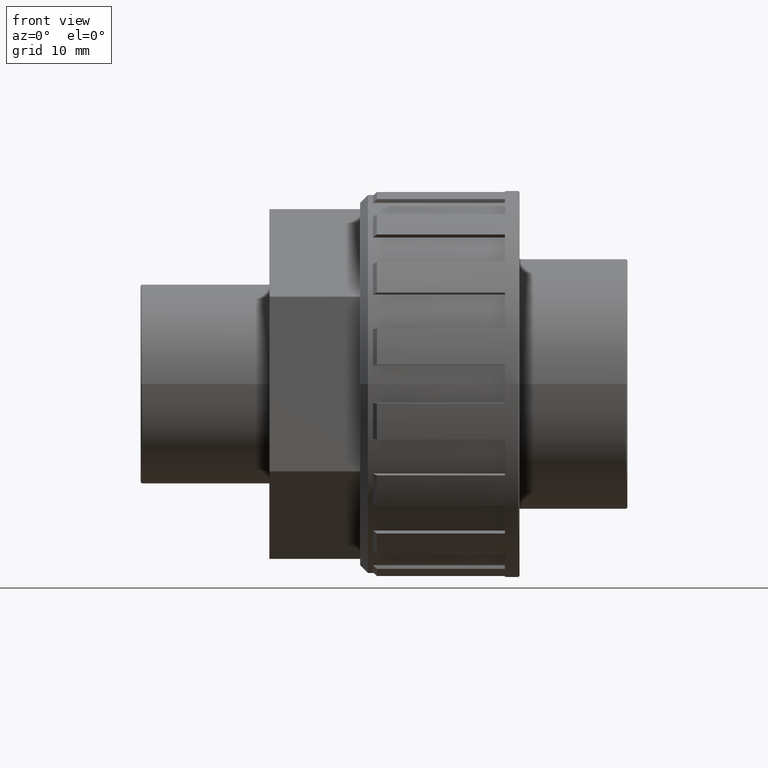
[diagram: clean part render]
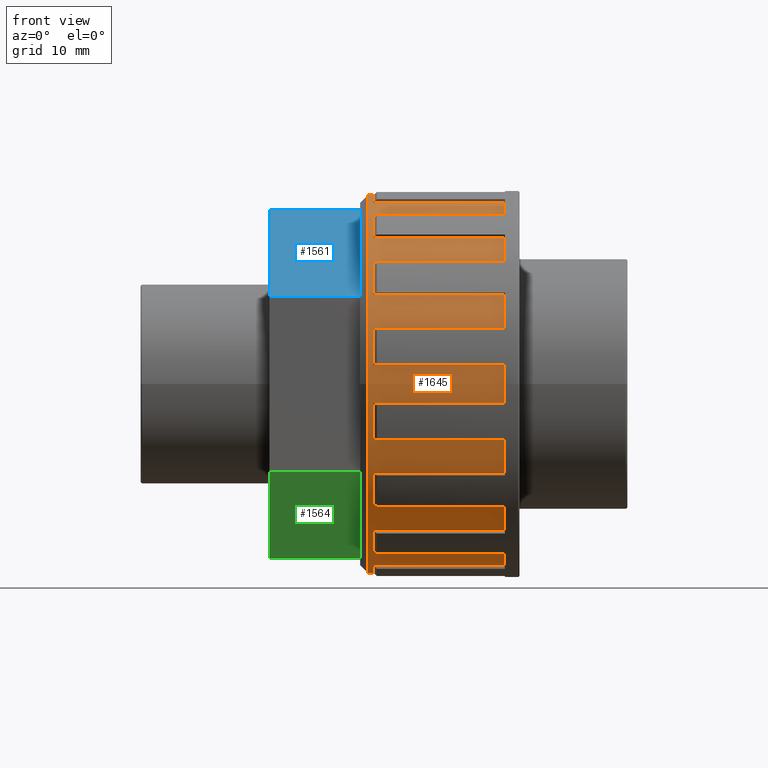
[diagram: same view with three faces highlighted in distinct colors, each labeled with its STEP entity id]
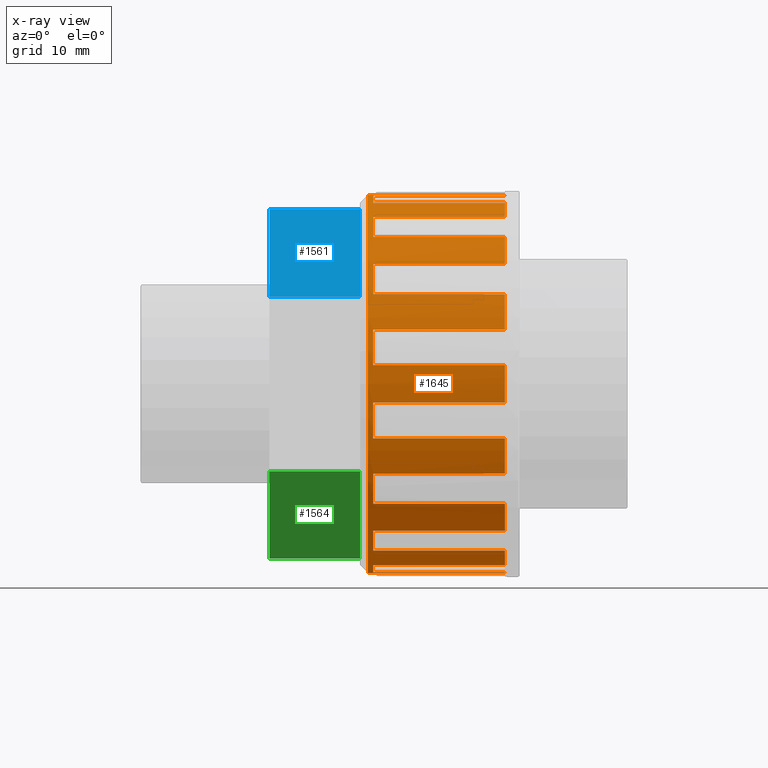
[diagram: x-ray of the same camera — body ghosted, the three highlighted faces saturated]
A machine part, front view with three faces highlighted in distinct colors.
The next image is the same camera in x-ray (body ghosted, the three faces saturated) — at least one of them is partly hidden behind the body in this view.
Their STEP definitions:

[orange] entity #1645 — the highlighted cylindrical surface (bore or boss wall) has radius 24.99 mm, axis along (-1, -0, 0).
#51=FACE_BOUND('',#342,.T.);
#64=CYLINDRICAL_SURFACE('',#1819,24.99);
#67=CIRCLE('',#1664,24.99);
#69=CIRCLE('',#1669,24.99);
#71=CIRCLE('',#1674,24.99);
#73=CIRCLE('',#1679,24.99);
#75=CIRCLE('',#1684,24.99);
#77=CIRCLE('',#1689,24.99);
#79=CIRCLE('',#1694,24.99);
#81=CIRCLE('',#1699,24.99);
#83=CIRCLE('',#1704,24.99);
#85=CIRCLE('',#1709,24.99);
#87=CIRCLE('',#1714,24.99);
#89=CIRCLE('',#1719,24.99);
#91=CIRCLE('',#1724,24.99);
#93=CIRCLE('',#1729,24.99);
#95=CIRCLE('',#1734,24.99);
#115=CIRCLE('',#1756,24.99);
#116=CIRCLE('',#1758,24.99);
#117=CIRCLE('',#1760,24.99);
#118=CIRCLE('',#1762,24.99);
#119=CIRCLE('',#1764,24.99);
#120=CIRCLE('',#1766,24.99);
#121=CIRCLE('',#1768,24.99);
#122=CIRCLE('',#1770,24.99);
#123=CIRCLE('',#1772,24.99);
#124=CIRCLE('',#1774,24.99);
#125=CIRCLE('',#1776,24.99);
#126=CIRCLE('',#1778,24.99);
#127=CIRCLE('',#1780,24.99);
#128=CIRCLE('',#1782,24.99);
#129=CIRCLE('',#1784,24.99);
#130=CIRCLE('',#1786,24.99);
#144=CIRCLE('',#1815,24.99);
#145=CIRCLE('',#1817,24.99);
#235=FACE_OUTER_BOUND('',#341,.T.);
#341=EDGE_LOOP('',(#1410,#1411,#1412,#1413,#1414,#1415,#1416,#1417,#1418,
#1419,#1420,#1421,#1422,#1423,#1424,#1425,#1426,#1427,#1428,#1429,#1430,
#1431,#1432,#1433,#1434,#1435,#1436,#1437,#1438,#1439,#1440,#1441,#1442,
#1443,#1444,#1445,#1446,#1447,#1448,#1449,#1450,#1451,#1452,#1453,#1454,
#1455,#1456,#1457,#1458,#1459,#1460,#1461,#1462,#1463,#1464,#1465,#1466,
#1467,#1468,#1469,#1470,#1471,#1472,#1473));
#342=EDGE_LOOP('',(#1474));
#378=LINE('',#2376,#524);
#380=LINE('',#2382,#526);
#386=LINE('',#2397,#532);
#388=LINE('',#2403,#534);
#394=LINE('',#2418,#540);
#396=LINE('',#2424,#542);
#402=LINE('',#2439,#548);
#404=LINE('',#2445,#550);
#410=LINE('',#2460,#556);
#412=LINE('',#2466,#558);
#418=LINE('',#2481,#564);
#420=LINE('',#2487,#566);
#426=LINE('',#2502,#572);
#428=LINE('',#2508,#574);
#434=LINE('',#2523,#580);
#436=LINE('',#2529,#582);
#442=LINE('',#2544,#588);
#444=LINE('',#2550,#590);
#450=LINE('',#2565,#596);
#452=LINE('',#2571,#598);
#458=LINE('',#2586,#604);
#460=LINE('',#2592,#606);
#466=LINE('',#2607,#612);
#468=LINE('',#2613,#614);
#474=LINE('',#2628,#620);
#476=LINE('',#2634,#622);
#482=LINE('',#2649,#628);
#484=LINE('',#2655,#630);
#490=LINE('',#2670,#636);
#492=LINE('',#2676,#638);
#500=LINE('',#2748,#646);
#501=LINE('',#2789,#647);
#524=VECTOR('',#1868,17.415);
#526=VECTOR('',#1872,17.415);
#532=VECTOR('',#1886,17.415);
#534=VECTOR('',#1890,17.415);
#540=VECTOR('',#1904,17.415);
#542=VECTOR('',#1908,17.415);
#548=VECTOR('',#1922,17.415);
#550=VECTOR('',#1926,17.415);
#556=VECTOR('',#1940,17.415);
#558=VECTOR('',#1944,17.415);
#564=VECTOR('',#1958,17.415);
#566=VECTOR('',#1962,17.415);
#572=VECTOR('',#1976,17.415);
#574=VECTOR('',#1980,17.415);
#580=VECTOR('',#1994,17.415);
#582=VECTOR('',#1998,17.415);
#588=VECTOR('',#2012,17.415);
#590=VECTOR('',#2016,17.415);
#596=VECTOR('',#2030,17.415);
#598=VECTOR('',#2034,17.415);
#604=VECTOR('',#2048,17.415);
#606=VECTOR('',#2052,17.415);
#612=VECTOR('',#2066,17.415);
#614=VECTOR('',#2070,17.415);
#620=VECTOR('',#2084,17.415);
#622=VECTOR('',#2088,17.415);
#628=VECTOR('',#2102,17.415);
#630=VECTOR('',#2106,17.415);
#636=VECTOR('',#2120,17.415);
#638=VECTOR('',#2124,17.415);
#646=VECTOR('',#2242,17.415);
#647=VECTOR('',#2295,17.415);
#662=VERTEX_POINT('',#2370);
#664=VERTEX_POINT('',#2374);
#665=VERTEX_POINT('',#2378);
#667=VERTEX_POINT('',#2381);
#670=VERTEX_POINT('',#2391);
#672=VERTEX_POINT('',#2395);
#673=VERTEX_POINT('',#2399);
#675=VERTEX_POINT('',#2402);
#678=VERTEX_POINT('',#2412);
#680=VERTEX_POINT('',#2416);
#681=VERTEX_POINT('',#2420);
#683=VERTEX_POINT('',#2423);
#686=VERTEX_POINT('',#2433);
#688=VERTEX_POINT('',#2437);
#689=VERTEX_POINT('',#2441);
#691=VERTEX_POINT('',#2444);
#694=VERTEX_POINT('',#2454);
#696=VERTEX_POINT('',#2458);
#697=VERTEX_POINT('',#2462);
#699=VERTEX_POINT('',#2465);
#702=VERTEX_POINT('',#2475);
#704=VERTEX_POINT('',#2479);
#705=VERTEX_POINT('',#2483);
#707=VERTEX_POINT('',#2486);
#710=VERTEX_POINT('',#2496);
#712=VERTEX_POINT('',#2500);
#713=VERTEX_POINT('',#2504);
#715=VERTEX_POINT('',#2507);
#718=VERTEX_POINT('',#2517);
#720=VERTEX_POINT('',#2521);
#721=VERTEX_POINT('',#2525);
#723=VERTEX_POINT('',#2528);
#726=VERTEX_POINT('',#2538);
#728=VERTEX_POINT('',#2542);
#729=VERTEX_POINT('',#2546);
#731=VERTEX_POINT('',#2549);
#734=VERTEX_POINT('',#2559);
#736=VERTEX_POINT('',#2563);
#737=VERTEX_POINT('',#2567);
#739=VERTEX_POINT('',#2570);
#742=VERTEX_POINT('',#2580);
#744=VERTEX_POINT('',#2584);
#745=VERTEX_POINT('',#2588);
#747=VERTEX_POINT('',#2591);
#750=VERTEX_POINT('',#2601);
#752=VERTEX_POINT('',#2605);
#753=VERTEX_POINT('',#2609);
#755=VERTEX_POINT('',#2612);
#758=VERTEX_POINT('',#2622);
#760=VERTEX_POINT('',#2626);
#761=VERTEX_POINT('',#2630);
#763=VERTEX_POINT('',#2633);
#766=VERTEX_POINT('',#2643);
#768=VERTEX_POINT('',#2647);
#769=VERTEX_POINT('',#2651);
#771=VERTEX_POINT('',#2654);
#774=VERTEX_POINT('',#2664);
#776=VERTEX_POINT('',#2668);
#777=VERTEX_POINT('',#2672);
#779=VERTEX_POINT('',#2675);
#786=VERTEX_POINT('',#2710);
#787=VERTEX_POINT('',#2742);
#788=VERTEX_POINT('',#2746);
#802=VERTEX_POINT('',#2788);
#803=VERTEX_POINT('',#2794);
#830=EDGE_CURVE('',#662,#664,#378,.T.);
#832=EDGE_CURVE('',#665,#667,#380,.T.);
#835=EDGE_CURVE('',#664,#667,#67,.T.);
#840=EDGE_CURVE('',#670,#672,#386,.T.);
#842=EDGE_CURVE('',#673,#675,#388,.T.);
#845=EDGE_CURVE('',#672,#675,#69,.T.);
#850=EDGE_CURVE('',#678,#680,#394,.T.);
#852=EDGE_CURVE('',#681,#683,#396,.T.);
#855=EDGE_CURVE('',#680,#683,#71,.T.);
#860=EDGE_CURVE('',#686,#688,#402,.T.);
#862=EDGE_CURVE('',#689,#691,#404,.T.);
#865=EDGE_CURVE('',#688,#691,#73,.T.);
#870=EDGE_CURVE('',#694,#696,#410,.T.);
#872=EDGE_CURVE('',#697,#699,#412,.T.);
#875=EDGE_CURVE('',#696,#699,#75,.T.);
#880=EDGE_CURVE('',#702,#704,#418,.T.);
#882=EDGE_CURVE('',#705,#707,#420,.T.);
#885=EDGE_CURVE('',#704,#707,#77,.T.);
#890=EDGE_CURVE('',#710,#712,#426,.T.);
#892=EDGE_CURVE('',#713,#715,#428,.T.);
#895=EDGE_CURVE('',#712,#715,#79,.T.);
#900=EDGE_CURVE('',#718,#720,#434,.T.);
#902=EDGE_CURVE('',#721,#723,#436,.T.);
#905=EDGE_CURVE('',#720,#723,#81,.T.);
#910=EDGE_CURVE('',#726,#728,#442,.T.);
#912=EDGE_CURVE('',#729,#731,#444,.T.);
#915=EDGE_CURVE('',#728,#731,#83,.T.);
#920=EDGE_CURVE('',#734,#736,#450,.T.);
#922=EDGE_CURVE('',#737,#739,#452,.T.);
#925=EDGE_CURVE('',#736,#739,#85,.T.);
#930=EDGE_CURVE('',#742,#744,#458,.T.);
#932=EDGE_CURVE('',#745,#747,#460,.T.);
#935=EDGE_CURVE('',#744,#747,#87,.T.);
#940=EDGE_CURVE('',#750,#752,#466,.T.);
#942=EDGE_CURVE('',#753,#755,#468,.T.);
#945=EDGE_CURVE('',#752,#755,#89,.T.);
#950=EDGE_CURVE('',#758,#760,#474,.T.);
#952=EDGE_CURVE('',#761,#763,#476,.T.);
#955=EDGE_CURVE('',#760,#763,#91,.T.);
#960=EDGE_CURVE('',#766,#768,#482,.T.);
#962=EDGE_CURVE('',#769,#771,#484,.T.);
#965=EDGE_CURVE('',#768,#771,#93,.T.);
#970=EDGE_CURVE('',#774,#776,#490,.T.);
#972=EDGE_CURVE('',#777,#779,#492,.T.);
#975=EDGE_CURVE('',#776,#779,#95,.T.);
#997=EDGE_CURVE('',#786,#774,#115,.T.);
#999=EDGE_CURVE('',#777,#766,#116,.T.);
#1000=EDGE_CURVE('',#769,#758,#117,.T.);
#1001=EDGE_CURVE('',#761,#750,#118,.T.);
#1002=EDGE_CURVE('',#753,#742,#119,.T.);
#1003=EDGE_CURVE('',#745,#734,#120,.T.);
#1004=EDGE_CURVE('',#737,#726,#121,.T.);
#1005=EDGE_CURVE('',#729,#718,#122,.T.);
#1006=EDGE_CURVE('',#721,#710,#123,.T.);
#1007=EDGE_CURVE('',#713,#702,#124,.T.);
#1008=EDGE_CURVE('',#705,#694,#125,.T.);
#1009=EDGE_CURVE('',#697,#686,#126,.T.);
#1010=EDGE_CURVE('',#689,#678,#127,.T.);
#1011=EDGE_CURVE('',#681,#670,#128,.T.);
#1012=EDGE_CURVE('',#673,#662,#129,.T.);
#1014=EDGE_CURVE('',#665,#787,#130,.T.);
#1016=EDGE_CURVE('',#787,#788,#500,.T.);
#1030=EDGE_CURVE('',#786,#802,#501,.T.);
#1032=EDGE_CURVE('',#788,#802,#144,.T.);
#1033=EDGE_CURVE('',#803,#803,#145,.T.);
#1410=ORIENTED_EDGE('',*,*,#997,.T.);
#1411=ORIENTED_EDGE('',*,*,#970,.T.);
#1412=ORIENTED_EDGE('',*,*,#975,.T.);
#1413=ORIENTED_EDGE('',*,*,#972,.F.);
#1414=ORIENTED_EDGE('',*,*,#999,.T.);
#1415=ORIENTED_EDGE('',*,*,#960,.T.);
#1416=ORIENTED_EDGE('',*,*,#965,.T.);
#1417=ORIENTED_EDGE('',*,*,#962,.F.);
#1418=ORIENTED_EDGE('',*,*,#1000,.T.);
#1419=ORIENTED_EDGE('',*,*,#950,.T.);
#1420=ORIENTED_EDGE('',*,*,#955,.T.);
#1421=ORIENTED_EDGE('',*,*,#952,.F.);
#1422=ORIENTED_EDGE('',*,*,#1001,.T.);
#1423=ORIENTED_EDGE('',*,*,#940,.T.);
#1424=ORIENTED_EDGE('',*,*,#945,.T.);
#1425=ORIENTED_EDGE('',*,*,#942,.F.);
#1426=ORIENTED_EDGE('',*,*,#1002,.T.);
#1427=ORIENTED_EDGE('',*,*,#930,.T.);
#1428=ORIENTED_EDGE('',*,*,#935,.T.);
#1429=ORIENTED_EDGE('',*,*,#932,.F.);
#1430=ORIENTED_EDGE('',*,*,#1003,.T.);
#1431=ORIENTED_EDGE('',*,*,#920,.T.);
#1432=ORIENTED_EDGE('',*,*,#925,.T.);
#1433=ORIENTED_EDGE('',*,*,#922,.F.);
#1434=ORIENTED_EDGE('',*,*,#1004,.T.);
#1435=ORIENTED_EDGE('',*,*,#910,.T.);
#1436=ORIENTED_EDGE('',*,*,#915,.T.);
#1437=ORIENTED_EDGE('',*,*,#912,.F.);
#1438=ORIENTED_EDGE('',*,*,#1005,.T.);
#1439=ORIENTED_EDGE('',*,*,#900,.T.);
#1440=ORIENTED_EDGE('',*,*,#905,.T.);
#1441=ORIENTED_EDGE('',*,*,#902,.F.);
#1442=ORIENTED_EDGE('',*,*,#1006,.T.);
#1443=ORIENTED_EDGE('',*,*,#890,.T.);
#1444=ORIENTED_EDGE('',*,*,#895,.T.);
#1445=ORIENTED_EDGE('',*,*,#892,.F.);
#1446=ORIENTED_EDGE('',*,*,#1007,.T.);
#1447=ORIENTED_EDGE('',*,*,#880,.T.);
#1448=ORIENTED_EDGE('',*,*,#885,.T.);
#1449=ORIENTED_EDGE('',*,*,#882,.F.);
#1450=ORIENTED_EDGE('',*,*,#1008,.T.);
#1451=ORIENTED_EDGE('',*,*,#870,.T.);
#1452=ORIENTED_EDGE('',*,*,#875,.T.);
#1453=ORIENTED_EDGE('',*,*,#872,.F.);
#1454=ORIENTED_EDGE('',*,*,#1009,.T.);
#1455=ORIENTED_EDGE('',*,*,#860,.T.);
#1456=ORIENTED_EDGE('',*,*,#865,.T.);
#1457=ORIENTED_EDGE('',*,*,#862,.F.);
#1458=ORIENTED_EDGE('',*,*,#1010,.T.);
#1459=ORIENTED_EDGE('',*,*,#850,.T.);
#1460=ORIENTED_EDGE('',*,*,#855,.T.);
#1461=ORIENTED_EDGE('',*,*,#852,.F.);
#1462=ORIENTED_EDGE('',*,*,#1011,.T.);
#1463=ORIENTED_EDGE('',*,*,#840,.T.);
#1464=ORIENTED_EDGE('',*,*,#845,.T.);
#1465=ORIENTED_EDGE('',*,*,#842,.F.);
#1466=ORIENTED_EDGE('',*,*,#1012,.T.);
#1467=ORIENTED_EDGE('',*,*,#830,.T.);
#1468=ORIENTED_EDGE('',*,*,#835,.T.);
#1469=ORIENTED_EDGE('',*,*,#832,.F.);
#1470=ORIENTED_EDGE('',*,*,#1014,.T.);
#1471=ORIENTED_EDGE('',*,*,#1016,.T.);
#1472=ORIENTED_EDGE('',*,*,#1032,.T.);
#1473=ORIENTED_EDGE('',*,*,#1030,.F.);
#1474=ORIENTED_EDGE('',*,*,#1033,.F.);
#1645=ADVANCED_FACE('',(#235,#51),#64,.T.);
#1664=AXIS2_PLACEMENT_3D('',#2387,#1877,#1878);
#1669=AXIS2_PLACEMENT_3D('',#2408,#1895,#1896);
#1674=AXIS2_PLACEMENT_3D('',#2429,#1913,#1914);
#1679=AXIS2_PLACEMENT_3D('',#2450,#1931,#1932);
#1684=AXIS2_PLACEMENT_3D('',#2471,#1949,#1950);
#1689=AXIS2_PLACEMENT_3D('',#2492,#1967,#1968);
#1694=AXIS2_PLACEMENT_3D('',#2513,#1985,#1986);
#1699=AXIS2_PLACEMENT_3D('',#2534,#2003,#2004);
#1704=AXIS2_PLACEMENT_3D('',#2555,#2021,#2022);
#1709=AXIS2_PLACEMENT_3D('',#2576,#2039,#2040);
#1714=AXIS2_PLACEMENT_3D('',#2597,#2057,#2058);
#1719=AXIS2_PLACEMENT_3D('',#2618,#2075,#2076);
#1724=AXIS2_PLACEMENT_3D('',#2639,#2093,#2094);
#1729=AXIS2_PLACEMENT_3D('',#2660,#2111,#2112);
#1734=AXIS2_PLACEMENT_3D('',#2681,#2129,#2130);
#1756=AXIS2_PLACEMENT_3D('',#2711,#2175,#2176);
#1758=AXIS2_PLACEMENT_3D('',#2714,#2180,#2181);
#1760=AXIS2_PLACEMENT_3D('',#2716,#2184,#2185);
#1762=AXIS2_PLACEMENT_3D('',#2718,#2188,#2189);
#1764=AXIS2_PLACEMENT_3D('',#2720,#2192,#2193);
#1766=AXIS2_PLACEMENT_3D('',#2722,#2196,#2197);
#1768=AXIS2_PLACEMENT_3D('',#2724,#2200,#2201);
#1770=AXIS2_PLACEMENT_3D('',#2726,#2204,#2205);
#1772=AXIS2_PLACEMENT_3D('',#2728,#2208,#2209);
#1774=AXIS2_PLACEMENT_3D('',#2730,#2212,#2213);
#1776=AXIS2_PLACEMENT_3D('',#2732,#2216,#2217);
#1778=AXIS2_PLACEMENT_3D('',#2734,#2220,#2221);
#1780=AXIS2_PLACEMENT_3D('',#2736,#2224,#2225);
#1782=AXIS2_PLACEMENT_3D('',#2738,#2228,#2229);
#1784=AXIS2_PLACEMENT_3D('',#2740,#2232,#2233);
#1786=AXIS2_PLACEMENT_3D('',#2744,#2237,#2238);
#1815=AXIS2_PLACEMENT_3D('',#2792,#2299,#2300);
#1817=AXIS2_PLACEMENT_3D('',#2795,#2303,#2304);
#1819=AXIS2_PLACEMENT_3D('',#2798,#2307,#2308);
#1868=DIRECTION('',(1.,5.09540067881273E-16,2.35097471951134E-18));
#1872=DIRECTION('',(1.,5.09540067881273E-16,2.35097471951134E-18));
#1877=DIRECTION('center_axis',(-1.,-4.90924831958475E-16,5.35970846648675E-18));
#1878=DIRECTION('ref_axis',(-1.92820524679539E-16,0.382683432365091,-0.923879532511287));
#1886=DIRECTION('',(1.,5.08208347678249E-16,4.34403484961599E-18));
#1890=DIRECTION('',(1.,5.08208347678249E-16,4.34403484961599E-18));
#1895=DIRECTION('center_axis',(-1.,-4.93960862923804E-16,9.90344990482916E-18));
#1896=DIRECTION('ref_axis',(-3.56285872399027E-16,0.707106781186548,-0.707106781186547));
#1904=DIRECTION('',(1.,5.06215287548144E-16,5.67575505264069E-18));
#1908=DIRECTION('',(1.,5.06215287548144E-16,5.67575505264069E-18));
#1913=DIRECTION('center_axis',(-1.,-4.98504604362146E-16,1.29394808701581E-17));
#1914=DIRECTION('ref_axis',(-4.65509925785238E-16,0.923879532511287,-0.382683432365089));
#1922=DIRECTION('',(1.,5.03864312828633E-16,6.14339299974831E-18));
#1926=DIRECTION('',(1.,5.03864312828633E-16,6.14339299974831E-18));
#1931=DIRECTION('center_axis',(-1.,-5.03864312828633E-16,1.40055931696919E-17));
#1932=DIRECTION('ref_axis',(-5.03864312828633E-16,1.,1.11066729154177E-15));
#1940=DIRECTION('',(1.,5.01513338109121E-16,5.67575505264062E-18));
#1944=DIRECTION('',(1.,5.01513338109121E-16,5.67575505264062E-18));
#1949=DIRECTION('center_axis',(-1.,-5.09224021295119E-16,1.29394808701582E-17));
#1950=DIRECTION('ref_axis',(-4.65509925785238E-16,0.923879532511287,0.382683432365091));
#1958=DIRECTION('',(1.,4.99520277979017E-16,4.34403484961596E-18));
#1962=DIRECTION('',(1.,4.99520277979017E-16,4.34403484961596E-18));
#1967=DIRECTION('center_axis',(-1.,-5.13767762733462E-16,9.90344990482911E-18));
#1968=DIRECTION('ref_axis',(-3.56285872399026E-16,0.707106781186547,0.707106781186548));
#1976=DIRECTION('',(1.,4.98188557775992E-16,2.35097471951138E-18));
#1980=DIRECTION('',(1.,4.98188557775992E-16,2.35097471951138E-18));
#1985=DIRECTION('center_axis',(-1.,-5.16803793698791E-16,5.3597084664867E-18));
#1986=DIRECTION('ref_axis',(-1.92820524679538E-16,0.382683432365089,0.923879532511287));
#1994=DIRECTION('',(1.,4.97720919828884E-16,6.08593862426367E-32));
#1998=DIRECTION('',(1.,4.97720919828884E-16,6.08593862426367E-32));
#2003=DIRECTION('center_axis',(-1.,-5.17869905998324E-16,-1.0862244886344E-31));
#2004=DIRECTION('ref_axis',(2.76211801547973E-31,-5.77546991601722E-16,
1.));
#2012=DIRECTION('',(1.,4.98188557775992E-16,-2.35097471951131E-18));
#2016=DIRECTION('',(1.,4.98188557775992E-16,-2.35097471951131E-18));
#2021=DIRECTION('center_axis',(-1.,-5.16803793698791E-16,-5.35970846648682E-18));
#2022=DIRECTION('ref_axis',(1.92820524679539E-16,-0.38268343236509,0.923879532511287));
#2030=DIRECTION('',(1.,4.99520277979017E-16,-4.34403484961602E-18));
#2034=DIRECTION('',(1.,4.99520277979017E-16,-4.34403484961602E-18));
#2039=DIRECTION('center_axis',(-1.,-5.13767762733462E-16,-9.903449904829E-18));
#2040=DIRECTION('ref_axis',(3.56285872399026E-16,-0.707106781186548,0.707106781186547));
#2048=DIRECTION('',(1.,5.01513338109121E-16,-5.6757550526406E-18));
#2052=DIRECTION('',(1.,5.01513338109121E-16,-5.6757550526406E-18));
#2057=DIRECTION('center_axis',(-1.,-5.09224021295119E-16,-1.29394808701582E-17));
#2058=DIRECTION('ref_axis',(4.65509925785238E-16,-0.923879532511287,0.38268343236509));
#2066=DIRECTION('',(1.,5.03864312828633E-16,-6.14339299974842E-18));
#2070=DIRECTION('',(1.,5.03864312828633E-16,-6.14339299974842E-18));
#2075=DIRECTION('center_axis',(-1.,-5.03864312828633E-16,-1.40055931696918E-17));
#2076=DIRECTION('ref_axis',(5.03864312828633E-16,-1.,-3.10986841631696E-16));
#2084=DIRECTION('',(1.,5.06215287548144E-16,-5.67575505264064E-18));
#2088=DIRECTION('',(1.,5.06215287548144E-16,-5.67575505264064E-18));
#2093=DIRECTION('center_axis',(-1.,-4.98504604362146E-16,-1.29394808701581E-17));
#2094=DIRECTION('ref_axis',(4.65509925785238E-16,-0.923879532511287,-0.38268343236509));
#2102=DIRECTION('',(1.,5.08208347678249E-16,-4.34403484961598E-18));
#2106=DIRECTION('',(1.,5.08208347678249E-16,-4.34403484961598E-18));
#2111=DIRECTION('center_axis',(-1.,-4.93960862923804E-16,-9.90344990482914E-18));
#2112=DIRECTION('ref_axis',(3.56285872399026E-16,-0.707106781186547,-0.707106781186548));
#2120=DIRECTION('',(1.,5.09540067881273E-16,-2.35097471951134E-18));
#2124=DIRECTION('',(1.,5.09540067881273E-16,-2.35097471951134E-18));
#2129=DIRECTION('center_axis',(-1.,-4.90924831958475E-16,-5.35970846648675E-18));
#2130=DIRECTION('ref_axis',(1.92820524679539E-16,-0.38268343236509,-0.923879532511287));
#2175=DIRECTION('center_axis',(-1.,-4.89858719658941E-16,0.));
#2176=DIRECTION('ref_axis',(0.,0.,1.));
#2180=DIRECTION('center_axis',(-1.,-4.89858719658941E-16,0.));
#2181=DIRECTION('ref_axis',(0.,0.,1.));
#2184=DIRECTION('center_axis',(-1.,-4.89858719658941E-16,0.));
#2185=DIRECTION('ref_axis',(0.,0.,1.));
#2188=DIRECTION('center_axis',(-1.,-4.89858719658941E-16,0.));
#2189=DIRECTION('ref_axis',(0.,0.,1.));
#2192=DIRECTION('center_axis',(-1.,-4.89858719658941E-16,0.));
#2193=DIRECTION('ref_axis',(0.,0.,1.));
#2196=DIRECTION('center_axis',(-1.,-4.89858719658941E-16,0.));
#2197=DIRECTION('ref_axis',(0.,0.,1.));
#2200=DIRECTION('center_axis',(-1.,-4.89858719658941E-16,0.));
#2201=DIRECTION('ref_axis',(0.,0.,1.));
#2204=DIRECTION('center_axis',(-1.,-4.89858719658941E-16,0.));
#2205=DIRECTION('ref_axis',(0.,0.,1.));
#2208=DIRECTION('center_axis',(-1.,-4.89858719658941E-16,0.));
#2209=DIRECTION('ref_axis',(0.,0.,1.));
#2212=DIRECTION('center_axis',(-1.,-4.89858719658941E-16,0.));
#2213=DIRECTION('ref_axis',(0.,0.,1.));
#2216=DIRECTION('center_axis',(-1.,-4.89858719658941E-16,0.));
#2217=DIRECTION('ref_axis',(0.,0.,1.));
#2220=DIRECTION('center_axis',(-1.,-4.89858719658941E-16,0.));
#2221=DIRECTION('ref_axis',(0.,0.,1.));
#2224=DIRECTION('center_axis',(-1.,-4.89858719658941E-16,0.));
#2225=DIRECTION('ref_axis',(0.,0.,1.));
#2228=DIRECTION('center_axis',(-1.,-4.89858719658941E-16,0.));
#2229=DIRECTION('ref_axis',(0.,0.,1.));
#2232=DIRECTION('center_axis',(-1.,-4.89858719658941E-16,0.));
#2233=DIRECTION('ref_axis',(0.,0.,1.));
#2237=DIRECTION('center_axis',(-1.,-4.89858719658941E-16,0.));
#2238=DIRECTION('ref_axis',(0.,0.,1.));
#2242=DIRECTION('',(1.,5.10007705828381E-16,0.));
#2295=DIRECTION('',(1.,5.10007705828381E-16,0.));
#2299=DIRECTION('center_axis',(-1.,-4.89858719658941E-16,0.));
#2300=DIRECTION('ref_axis',(0.,0.,-1.));
#2303=DIRECTION('center_axis',(-1.,-4.89858719658941E-16,0.));
#2304=DIRECTION('ref_axis',(-5.03864312828633E-16,1.,0.));
#2307=DIRECTION('center_axis',(-1.,-4.89858719658941E-16,0.));
#2308=DIRECTION('ref_axis',(5.03864312828633E-16,-1.,0.));
#2370=CARTESIAN_POINT('',(-1.45000000000002,22.0156948234538,11.8240974894724));
#2374=CARTESIAN_POINT('',(15.965,22.0156948234538,11.8240974894724));
#2376=CARTESIAN_POINT('',(-1.45000000000002,22.0156948234538,11.8240974894724));
#2378=CARTESIAN_POINT('',(-1.45000000000002,23.9283466184146,7.20654758598102));
#2381=CARTESIAN_POINT('',(15.965,23.9283466184146,7.20654758598102));
#2382=CARTESIAN_POINT('',(-1.45000000000002,23.9283466184146,7.20654758598102));
#2387=CARTESIAN_POINT('Origin',(15.965,1.4058889691037E-14,9.27974041535481E-17));
#2391=CARTESIAN_POINT('',(-1.45000000000001,15.8149636295129,19.3490833218833));
#2395=CARTESIAN_POINT('',(15.965,15.8149636295129,19.3490833218833));
#2397=CARTESIAN_POINT('',(-1.45000000000001,15.8149636295129,19.3490833218833));
#2399=CARTESIAN_POINT('',(-1.45000000000001,19.3490833218833,15.814963629513));
#2402=CARTESIAN_POINT('',(15.965,19.3490833218833,15.814963629513));
#2403=CARTESIAN_POINT('',(-1.45000000000001,19.3490833218833,15.814963629513));
#2408=CARTESIAN_POINT('Origin',(15.965,1.40063241841118E-14,1.71467244735283E-16));
#2412=CARTESIAN_POINT('',(-1.45000000000001,7.206547585981,23.9283466184146));
#2416=CARTESIAN_POINT('',(15.965,7.20654758598101,23.9283466184146));
#2418=CARTESIAN_POINT('',(-1.45000000000001,7.206547585981,23.9283466184146));
#2420=CARTESIAN_POINT('',(-1.45000000000001,11.8240974894724,22.0156948234539));
#2423=CARTESIAN_POINT('',(15.965,11.8240974894724,22.0156948234539));
#2424=CARTESIAN_POINT('',(-1.45000000000001,11.8240974894724,22.0156948234539));
#2429=CARTESIAN_POINT('Origin',(15.965,1.39276543435301E-14,2.24032751660519E-16));
#2433=CARTESIAN_POINT('',(-1.45,-2.49900000000002,24.8647360532944));
#2437=CARTESIAN_POINT('',(15.965,-2.49900000000001,24.8647360532944));
#2439=CARTESIAN_POINT('',(-1.45,-2.49900000000002,24.8647360532944));
#2441=CARTESIAN_POINT('',(-1.45000000000001,2.49899999999998,24.8647360532944));
#2444=CARTESIAN_POINT('',(15.965,2.49899999999999,24.8647360532944));
#2445=CARTESIAN_POINT('',(-1.45000000000001,2.49899999999998,24.8647360532944));
#2450=CARTESIAN_POINT('Origin',(15.965,1.38348569393765E-14,2.42491303007383E-16));
#2454=CARTESIAN_POINT('',(-1.45,-11.8240974894724,22.0156948234538));
#2458=CARTESIAN_POINT('',(15.965,-11.8240974894724,22.0156948234538));
#2460=CARTESIAN_POINT('',(-1.45,-11.8240974894724,22.0156948234538));
#2462=CARTESIAN_POINT('',(-1.45,-7.20654758598102,23.9283466184146));
#2465=CARTESIAN_POINT('',(15.965,-7.20654758598101,23.9283466184146));
#2466=CARTESIAN_POINT('',(-1.45,-7.20654758598102,23.9283466184146));
#2471=CARTESIAN_POINT('Origin',(15.965,1.3742059535223E-14,2.24032751660516E-16));
#2475=CARTESIAN_POINT('',(-1.45,-19.3490833218833,15.8149636295129));
#2479=CARTESIAN_POINT('',(15.965,-19.3490833218833,15.8149636295129));
#2481=CARTESIAN_POINT('',(-1.45,-19.3490833218833,15.8149636295129));
#2483=CARTESIAN_POINT('',(-1.45,-15.814963629513,19.3490833218833));
#2486=CARTESIAN_POINT('',(15.965,-15.8149636295129,19.3490833218833));
#2487=CARTESIAN_POINT('',(-1.45,-15.814963629513,19.3490833218833));
#2492=CARTESIAN_POINT('Origin',(15.965,1.36633896946412E-14,1.71467244735282E-16));
#2496=CARTESIAN_POINT('',(-1.44999999999999,-23.9283466184146,7.20654758598099));
#2500=CARTESIAN_POINT('',(15.965,-23.9283466184146,7.20654758598099));
#2502=CARTESIAN_POINT('',(-1.44999999999999,-23.9283466184146,7.20654758598099));
#2504=CARTESIAN_POINT('',(-1.44999999999999,-22.0156948234538,11.8240974894724));
#2507=CARTESIAN_POINT('',(15.965,-22.0156948234538,11.8240974894724));
#2508=CARTESIAN_POINT('',(-1.44999999999999,-22.0156948234538,11.8240974894724));
#2513=CARTESIAN_POINT('Origin',(15.965,1.3610824187716E-14,9.27974041535508E-17));
#2517=CARTESIAN_POINT('',(-1.44999999999999,-24.8647360532944,-2.49900000000002));
#2521=CARTESIAN_POINT('',(15.965,-24.8647360532944,-2.49900000000001));
#2523=CARTESIAN_POINT('',(-1.44999999999999,-24.8647360532944,-2.49900000000002));
#2525=CARTESIAN_POINT('',(-1.44999999999999,-24.8647360532944,2.49899999999999));
#2528=CARTESIAN_POINT('',(15.965,-24.8647360532944,2.49899999999999));
#2529=CARTESIAN_POINT('',(-1.44999999999999,-24.8647360532944,2.49899999999999));
#2534=CARTESIAN_POINT('Origin',(15.965,1.35923656363691E-14,2.46519032881566E-30));
#2538=CARTESIAN_POINT('',(-1.44999999999999,-22.0156948234538,-11.8240974894724));
#2542=CARTESIAN_POINT('',(15.965,-22.0156948234538,-11.8240974894724));
#2544=CARTESIAN_POINT('',(-1.44999999999999,-22.0156948234538,-11.8240974894724));
#2546=CARTESIAN_POINT('',(-1.44999999999999,-23.9283466184146,-7.20654758598102));
#2549=CARTESIAN_POINT('',(15.965,-23.9283466184146,-7.20654758598102));
#2550=CARTESIAN_POINT('',(-1.44999999999999,-23.9283466184146,-7.20654758598102));
#2555=CARTESIAN_POINT('Origin',(15.965,1.3610824187716E-14,-9.27974041535481E-17));
#2559=CARTESIAN_POINT('',(-1.45,-15.8149636295129,-19.3490833218833));
#2563=CARTESIAN_POINT('',(15.965,-15.8149636295129,-19.3490833218833));
#2565=CARTESIAN_POINT('',(-1.45,-15.8149636295129,-19.3490833218833));
#2567=CARTESIAN_POINT('',(-1.45,-19.3490833218833,-15.814963629513));
#2570=CARTESIAN_POINT('',(15.965,-19.3490833218833,-15.814963629513));
#2571=CARTESIAN_POINT('',(-1.45,-19.3490833218833,-15.814963629513));
#2576=CARTESIAN_POINT('Origin',(15.965,1.36633896946412E-14,-1.71467244735285E-16));
#2580=CARTESIAN_POINT('',(-1.45,-7.206547585981,-23.9283466184146));
#2584=CARTESIAN_POINT('',(15.965,-7.20654758598099,-23.9283466184146));
#2586=CARTESIAN_POINT('',(-1.45,-7.206547585981,-23.9283466184146));
#2588=CARTESIAN_POINT('',(-1.45,-11.8240974894724,-22.0156948234539));
#2591=CARTESIAN_POINT('',(15.965,-11.8240974894724,-22.0156948234539));
#2592=CARTESIAN_POINT('',(-1.45,-11.8240974894724,-22.0156948234539));
#2597=CARTESIAN_POINT('Origin',(15.965,1.3742059535223E-14,-2.24032751660516E-16));
#2601=CARTESIAN_POINT('',(-1.45000000000001,2.49900000000002,-24.8647360532944));
#2605=CARTESIAN_POINT('',(15.965,2.49900000000002,-24.8647360532944));
#2607=CARTESIAN_POINT('',(-1.45000000000001,2.49900000000002,-24.8647360532944));
#2609=CARTESIAN_POINT('',(-1.45,-2.49899999999999,-24.8647360532944));
#2612=CARTESIAN_POINT('',(15.965,-2.49899999999998,-24.8647360532944));
#2613=CARTESIAN_POINT('',(-1.45,-2.49899999999999,-24.8647360532944));
#2618=CARTESIAN_POINT('Origin',(15.965,1.38348569393765E-14,-2.42491303007387E-16));
#2622=CARTESIAN_POINT('',(-1.45000000000001,11.8240974894724,-22.0156948234538));
#2626=CARTESIAN_POINT('',(15.965,11.8240974894724,-22.0156948234538));
#2628=CARTESIAN_POINT('',(-1.45000000000001,11.8240974894724,-22.0156948234538));
#2630=CARTESIAN_POINT('',(-1.45000000000001,7.20654758598101,-23.9283466184146));
#2633=CARTESIAN_POINT('',(15.965,7.20654758598102,-23.9283466184146));
#2634=CARTESIAN_POINT('',(-1.45000000000001,7.20654758598101,-23.9283466184146));
#2639=CARTESIAN_POINT('Origin',(15.965,1.39276543435301E-14,-2.24032751660518E-16));
#2643=CARTESIAN_POINT('',(-1.45000000000002,19.3490833218833,-15.8149636295129));
#2647=CARTESIAN_POINT('',(15.965,19.3490833218833,-15.8149636295129));
#2649=CARTESIAN_POINT('',(-1.45000000000002,19.3490833218833,-15.8149636295129));
#2651=CARTESIAN_POINT('',(-1.45000000000001,15.814963629513,-19.3490833218833));
#2654=CARTESIAN_POINT('',(15.965,15.814963629513,-19.3490833218833));
#2655=CARTESIAN_POINT('',(-1.45000000000001,15.814963629513,-19.3490833218833));
#2660=CARTESIAN_POINT('Origin',(15.965,1.40063241841118E-14,-1.71467244735283E-16));
#2664=CARTESIAN_POINT('',(-1.45000000000002,23.9283466184146,-7.20654758598101));
#2668=CARTESIAN_POINT('',(15.965,23.9283466184146,-7.20654758598101));
#2670=CARTESIAN_POINT('',(-1.45000000000002,23.9283466184146,-7.20654758598101));
#2672=CARTESIAN_POINT('',(-1.45000000000002,22.0156948234539,-11.8240974894724));
#2675=CARTESIAN_POINT('',(15.965,22.0156948234539,-11.8240974894724));
#2676=CARTESIAN_POINT('',(-1.45000000000002,22.0156948234539,-11.8240974894724));
#2681=CARTESIAN_POINT('Origin',(15.965,1.4058889691037E-14,-9.27974041535486E-17));
#2710=CARTESIAN_POINT('',(-1.45000000000002,24.8647360532945,-2.499));
#2711=CARTESIAN_POINT('Origin',(-1.45000000000001,5.19556404538264E-15,
0.));
#2714=CARTESIAN_POINT('Origin',(-1.45000000000001,5.19556404538264E-15,
0.));
#2716=CARTESIAN_POINT('Origin',(-1.45000000000001,5.19556404538264E-15,
0.));
#2718=CARTESIAN_POINT('Origin',(-1.45000000000001,5.19556404538264E-15,
0.));
#2720=CARTESIAN_POINT('Origin',(-1.45000000000001,5.19556404538264E-15,
0.));
#2722=CARTESIAN_POINT('Origin',(-1.45000000000001,5.19556404538264E-15,
0.));
#2724=CARTESIAN_POINT('Origin',(-1.45000000000001,5.19556404538264E-15,
0.));
#2726=CARTESIAN_POINT('Origin',(-1.45000000000001,5.19556404538264E-15,
0.));
#2728=CARTESIAN_POINT('Origin',(-1.45000000000001,5.19556404538264E-15,
0.));
#2730=CARTESIAN_POINT('Origin',(-1.45000000000001,5.19556404538264E-15,
0.));
#2732=CARTESIAN_POINT('Origin',(-1.45000000000001,5.19556404538264E-15,
0.));
#2734=CARTESIAN_POINT('Origin',(-1.45000000000001,5.19556404538264E-15,
0.));
#2736=CARTESIAN_POINT('Origin',(-1.45000000000001,5.19556404538264E-15,
0.));
#2738=CARTESIAN_POINT('Origin',(-1.45000000000001,5.19556404538264E-15,
0.));
#2740=CARTESIAN_POINT('Origin',(-1.45000000000001,5.19556404538264E-15,
0.));
#2742=CARTESIAN_POINT('',(-1.45000000000002,24.8647360532945,2.499));
#2744=CARTESIAN_POINT('Origin',(-1.45000000000001,5.19556404538264E-15,
0.));
#2746=CARTESIAN_POINT('',(15.965,24.8647360532945,2.499));
#2748=CARTESIAN_POINT('',(-1.45000000000002,24.8647360532945,2.499));
#2788=CARTESIAN_POINT('',(15.965,24.8647360532945,-2.499));
#2789=CARTESIAN_POINT('',(-1.45000000000002,24.8647360532945,-2.499));
#2792=CARTESIAN_POINT('Origin',(15.965,1.40773482423839E-14,0.));
#2794=CARTESIAN_POINT('',(-2.13,-24.99,3.06039235106924E-15));
#2795=CARTESIAN_POINT('Origin',(-2.13000000000001,4.86246011601456E-15,
0.));
#2798=CARTESIAN_POINT('Origin',(-2.30000000000001,4.77918413367254E-15,
0.));

[blue] entity #1561 — the highlighted planar face has unit normal (0, -0.5, 0.866).
#151=FACE_OUTER_BOUND('',#243,.T.);
#243=EDGE_LOOP('',(#1039,#1040,#1041,#1042));
#357=LINE('',#2335,#503);
#358=LINE('',#2337,#504);
#359=LINE('',#2339,#505);
#360=LINE('',#2340,#506);
#503=VECTOR('',#1835,23.0940107675851);
#504=VECTOR('',#1836,12.);
#505=VECTOR('',#1837,23.0940107675851);
#506=VECTOR('',#1838,12.);
#649=VERTEX_POINT('',#2333);
#650=VERTEX_POINT('',#2334);
#651=VERTEX_POINT('',#2336);
#652=VERTEX_POINT('',#2338);
#809=EDGE_CURVE('',#649,#650,#357,.T.);
#810=EDGE_CURVE('',#651,#649,#358,.T.);
#811=EDGE_CURVE('',#651,#652,#359,.T.);
#812=EDGE_CURVE('',#652,#650,#360,.T.);
#1039=ORIENTED_EDGE('',*,*,#809,.F.);
#1040=ORIENTED_EDGE('',*,*,#810,.F.);
#1041=ORIENTED_EDGE('',*,*,#811,.T.);
#1042=ORIENTED_EDGE('',*,*,#812,.T.);
#1499=PLANE('',#1655);
#1561=ADVANCED_FACE('',(#151),#1499,.T.);
#1655=AXIS2_PLACEMENT_3D('',#2332,#1833,#1834);
#1833=DIRECTION('center_axis',(2.46716227694476E-16,-0.5,0.866025403784439));
#1834=DIRECTION('ref_axis',(3.5527136788005E-16,-0.866025403784439,-0.5));
#1835=DIRECTION('',(4.24230095489962E-16,-0.866025403784439,-0.5));
#1836=DIRECTION('',(1.,4.93432455388953E-16,0.));
#1837=DIRECTION('',(4.24230095489962E-16,-0.866025403784439,-0.5));
#1838=DIRECTION('',(1.,4.93432455388953E-16,0.));
#2332=CARTESIAN_POINT('Origin',(-15.15,-6.14276885302824E-14,23.0940107675851));
#2333=CARTESIAN_POINT('',(-3.15,-5.55064990656149E-14,23.0940107675851));
#2334=CARTESIAN_POINT('',(-3.15,-20.0000000000001,11.5470053837925));
#2335=CARTESIAN_POINT('',(-3.15,-12.5,15.8771324027147));
#2336=CARTESIAN_POINT('',(-15.15,-6.14276885302824E-14,23.0940107675851));
#2337=CARTESIAN_POINT('',(-15.15,-6.14276885302824E-14,23.0940107675851));
#2338=CARTESIAN_POINT('',(-15.15,-20.0000000000001,11.5470053837925));
#2339=CARTESIAN_POINT('',(-15.15,-6.14276885302824E-14,23.0940107675851));
#2340=CARTESIAN_POINT('',(-15.15,-20.0000000000001,11.5470053837925));

[green] entity #1564 — the highlighted planar face has unit normal (0, -0.5, -0.866).
#154=FACE_OUTER_BOUND('',#246,.T.);
#246=EDGE_LOOP('',(#1051,#1052,#1053,#1054));
#365=LINE('',#2352,#511);
#368=LINE('',#2358,#514);
#369=LINE('',#2360,#515);
#370=LINE('',#2361,#516);
#511=VECTOR('',#1847,12.);
#514=VECTOR('',#1852,23.094010767585);
#515=VECTOR('',#1853,12.);
#516=VECTOR('',#1854,23.094010767585);
#655=VERTEX_POINT('',#2348);
#657=VERTEX_POINT('',#2351);
#659=VERTEX_POINT('',#2357);
#660=VERTEX_POINT('',#2359);
#817=EDGE_CURVE('',#657,#655,#365,.T.);
#820=EDGE_CURVE('',#659,#655,#368,.T.);
#821=EDGE_CURVE('',#660,#659,#369,.T.);
#822=EDGE_CURVE('',#660,#657,#370,.T.);
#1051=ORIENTED_EDGE('',*,*,#820,.F.);
#1052=ORIENTED_EDGE('',*,*,#821,.F.);
#1053=ORIENTED_EDGE('',*,*,#822,.T.);
#1054=ORIENTED_EDGE('',*,*,#817,.T.);
#1502=PLANE('',#1658);
#1564=ADVANCED_FACE('',(#154),#1502,.T.);
#1658=AXIS2_PLACEMENT_3D('',#2356,#1850,#1851);
#1847=DIRECTION('',(1.,4.93432455388953E-16,0.));
#1850=DIRECTION('center_axis',(2.46716227694476E-16,-0.5,-0.866025403784439));
#1851=DIRECTION('ref_axis',(-3.5527136788005E-16,0.866025403784439,-0.5));
#1852=DIRECTION('',(-4.24230095489962E-16,0.866025403784439,-0.5));
#1853=DIRECTION('',(1.,4.93432455388953E-16,0.));
#1854=DIRECTION('',(-4.24230095489962E-16,0.866025403784439,-0.5));
#2348=CARTESIAN_POINT('',(-3.15,-6.21787068170261E-14,-23.094010767585));
#2351=CARTESIAN_POINT('',(-15.15,-6.80998962816936E-14,-23.094010767585));
#2352=CARTESIAN_POINT('',(-15.15,-6.80998962816936E-14,-23.094010767585));
#2356=CARTESIAN_POINT('Origin',(-15.15,-20.0000000000001,-11.5470053837925));
#2357=CARTESIAN_POINT('',(-3.15,-20.0000000000001,-11.5470053837925));
#2358=CARTESIAN_POINT('',(-3.14999999999999,-22.5,-10.1036297108185));
#2359=CARTESIAN_POINT('',(-15.15,-20.0000000000001,-11.5470053837925));
#2360=CARTESIAN_POINT('',(-15.15,-20.0000000000001,-11.5470053837925));
#2361=CARTESIAN_POINT('',(-15.15,-20.0000000000001,-11.5470053837925));